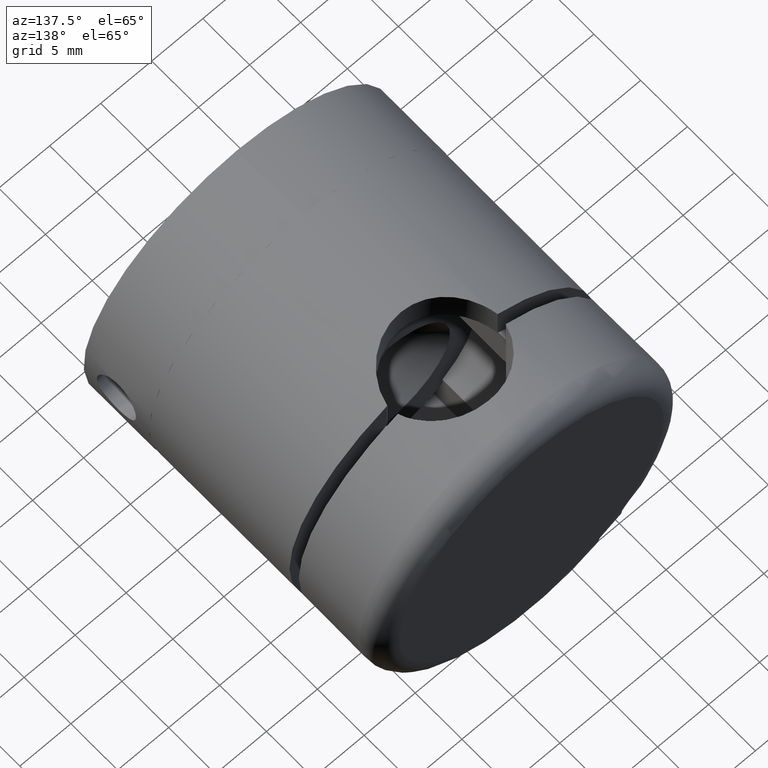
[diagram: clean part render]
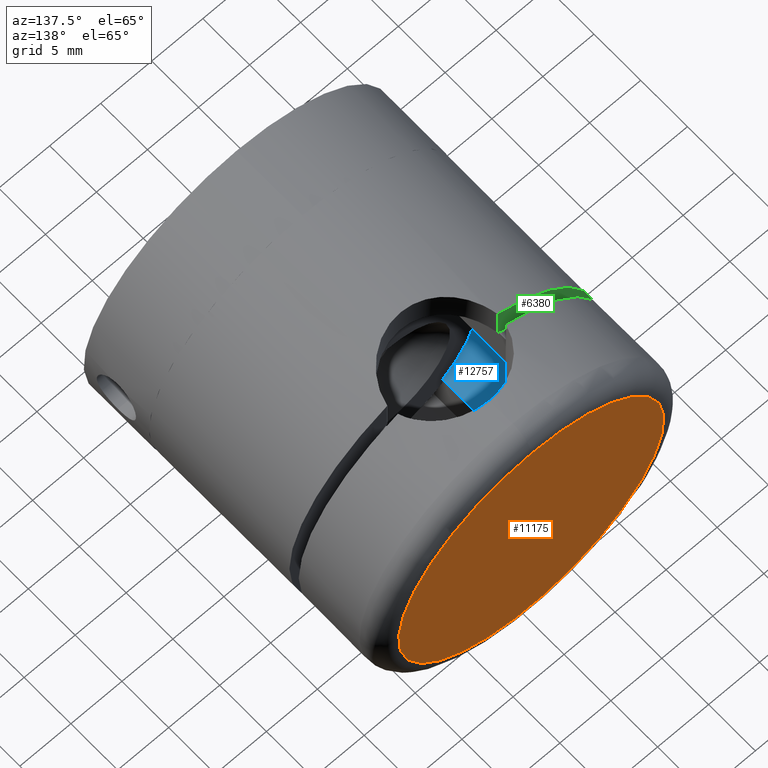
[diagram: same view with three faces highlighted in distinct colors, each labeled with its STEP entity id]
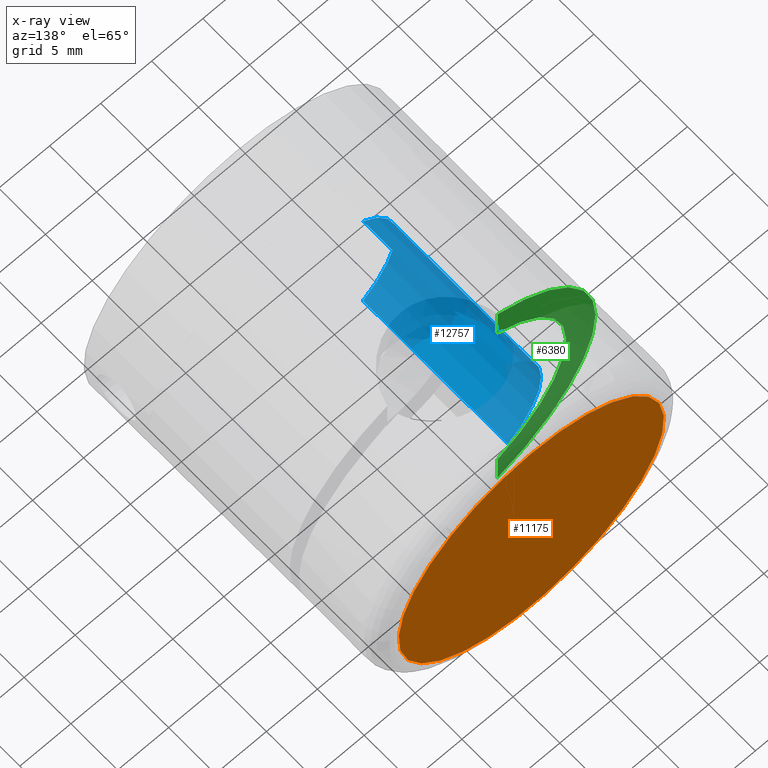
[diagram: x-ray of the same camera — body ghosted, the three highlighted faces saturated]
A machine part, auxiliary view with three faces highlighted in distinct colors.
The next image is the same camera in x-ray (body ghosted, the three faces saturated) — at least one of them is partly hidden behind the body in this view.
Their STEP definitions:

[orange] entity #11175 — the highlighted planar face has unit normal (0, 1, 0).
#384 = CARTESIAN_POINT ( 'NONE',  ( 0.0000000000000000000, 1.500000000000000000, 0.0000000000000000000 ) ) ;
#556 = DIRECTION ( 'NONE',  ( 0.0000000000000000000, -1.000000000000000000, 0.0000000000000000000 ) ) ;
#1029 = DIRECTION ( 'NONE',  ( 0.0000000000000000000, -1.000000000000000000, 0.0000000000000000000 ) ) ;
#1072 = DIRECTION ( 'NONE',  ( 0.0000000000000000000, 0.0000000000000000000, -1.000000000000000000 ) ) ;
#4127 = FACE_OUTER_BOUND ( 'NONE', #16780, .T. ) ;
#4657 = VERTEX_POINT ( 'NONE', #15524 ) ;
#6442 = AXIS2_PLACEMENT_3D ( 'NONE', #16857, #1029, #1072 ) ;
#9128 = CIRCLE ( 'NONE', #6442, 13.00000000000000000 ) ;
#10406 = EDGE_CURVE ( 'NONE', #4657, #4657, #9128, .T. ) ;
#11164 = ORIENTED_EDGE ( 'NONE', *, *, #10406, .T. ) ;
#11175 = ADVANCED_FACE ( 'NONE', ( #4127 ), #14910, .T. ) ;
#12253 = AXIS2_PLACEMENT_3D ( 'NONE', #384, #556, #16290 ) ;
#14910 = PLANE ( 'NONE',  #12253 ) ;
#15524 = CARTESIAN_POINT ( 'NONE',  ( 0.0000000000000000000, 1.500000000000000000, -13.00000000000000000 ) ) ;
#16290 = DIRECTION ( 'NONE',  ( 0.0000000000000000000, -0.0000000000000000000, -1.000000000000000000 ) ) ;
#16780 = EDGE_LOOP ( 'NONE', ( #11164 ) ) ;
#16857 = CARTESIAN_POINT ( 'NONE',  ( 0.0000000000000000000, 1.500000000000000000, 0.0000000000000000000 ) ) ;

[blue] entity #12757 — the highlighted cylindrical surface (partial cylindrical patch) has radius 8.75 mm, axis along (0, -1, 0).
#117 = CIRCLE ( 'NONE', #17166, 8.750000000000001800 ) ;
#309 = ORIENTED_EDGE ( 'NONE', *, *, #9747, .T. ) ;
#533 = DIRECTION ( 'NONE',  ( 0.0000000000000000000, 0.0000000000000000000, 1.000000000000000000 ) ) ;
#1043 = DIRECTION ( 'NONE',  ( 0.0000000000000000000, 0.0000000000000000000, 1.000000000000000000 ) ) ;
#1498 = VECTOR ( 'NONE', #10984, 1000.000000000000000 ) ;
#1726 = VERTEX_POINT ( 'NONE', #9062 ) ;
#2035 = AXIS2_PLACEMENT_3D ( 'NONE', #4083, #8102, #6483 ) ;
#2392 = VERTEX_POINT ( 'NONE', #5010 ) ;
#2623 = ORIENTED_EDGE ( 'NONE', *, *, #14426, .T. ) ;
#2668 = LINE ( 'NONE', #8620, #14488 ) ;
#3356 = DIRECTION ( 'NONE',  ( -0.0000000000000000000, 1.000000000000000000, -0.0000000000000000000 ) ) ;
#4083 = CARTESIAN_POINT ( 'NONE',  ( 0.0000000000000000000, 10.00000000000000200, 0.0000000000000000000 ) ) ;
#5010 = CARTESIAN_POINT ( 'NONE',  ( -5.499999999999999100, 10.00000000000000200, 6.805328794408104900 ) ) ;
#5409 = LINE ( 'NONE', #15855, #1498 ) ;
#5418 = CARTESIAN_POINT ( 'NONE',  ( -5.500000000000000900, 25.50000000000000400, -6.805328794408102200 ) ) ;
#5854 = CARTESIAN_POINT ( 'NONE',  ( 0.0000000000000000000, -14.74873734152917100, 0.0000000000000000000 ) ) ;
#5979 = DIRECTION ( 'NONE',  ( -0.0000000000000000000, 1.000000000000000000, -0.0000000000000000000 ) ) ;
#6483 = DIRECTION ( 'NONE',  ( 0.0000000000000000000, 0.0000000000000000000, 1.000000000000000000 ) ) ;
#7224 = FACE_OUTER_BOUND ( 'NONE', #14522, .T. ) ;
#7270 = VERTEX_POINT ( 'NONE', #9252 ) ;
#8090 = CYLINDRICAL_SURFACE ( 'NONE', #10493, 8.750000000000001800 ) ;
#8102 = DIRECTION ( 'NONE',  ( -0.0000000000000000000, -1.000000000000000000, -0.0000000000000000000 ) ) ;
#8449 = EDGE_CURVE ( 'NONE', #16972, #1726, #5409, .T. ) ;
#8620 = CARTESIAN_POINT ( 'NONE',  ( -5.499999999999999100, -14.74873734152917100, 6.805328794408104000 ) ) ;
#8942 = DIRECTION ( 'NONE',  ( 0.0000000000000000000, 1.000000000000000000, 0.0000000000000000000 ) ) ;
#9062 = CARTESIAN_POINT ( 'NONE',  ( -5.500000000000000900, 10.00000000000000200, -6.805328794408102200 ) ) ;
#9252 = CARTESIAN_POINT ( 'NONE',  ( -5.499999999999999100, 25.50000000000000400, 6.805328794408104000 ) ) ;
#9613 = ORIENTED_EDGE ( 'NONE', *, *, #8449, .F. ) ;
#9747 = EDGE_CURVE ( 'NONE', #2392, #1726, #11192, .T. ) ;
#10493 = AXIS2_PLACEMENT_3D ( 'NONE', #5854, #3356, #533 ) ;
#10863 = ORIENTED_EDGE ( 'NONE', *, *, #11883, .F. ) ;
#10984 = DIRECTION ( 'NONE',  ( 0.0000000000000000000, -1.000000000000000000, 0.0000000000000000000 ) ) ;
#11192 = CIRCLE ( 'NONE', #2035, 8.750000000000001800 ) ;
#11883 = EDGE_CURVE ( 'NONE', #2392, #7270, #2668, .T. ) ;
#12757 = ADVANCED_FACE ( 'NONE', ( #7224 ), #8090, .F. ) ;
#14207 = CARTESIAN_POINT ( 'NONE',  ( 0.0000000000000000000, 25.50000000000000400, 0.0000000000000000000 ) ) ;
#14426 = EDGE_CURVE ( 'NONE', #16972, #7270, #117, .T. ) ;
#14488 = VECTOR ( 'NONE', #5979, 1000.000000000000000 ) ;
#14522 = EDGE_LOOP ( 'NONE', ( #309, #9613, #2623, #10863 ) ) ;
#15855 = CARTESIAN_POINT ( 'NONE',  ( -5.500000000000000900, -14.74873734152917100, -6.805328794408102200 ) ) ;
#16972 = VERTEX_POINT ( 'NONE', #5418 ) ;
#17166 = AXIS2_PLACEMENT_3D ( 'NONE', #14207, #8942, #1043 ) ;

[green] entity #6380 — the highlighted planar face has unit normal (0, -1, 0).
#446 = CARTESIAN_POINT ( 'NONE',  ( 5.408326913195983500, 0.0000000000000000000, -10.82404730218784600 ) ) ;
#505 = VERTEX_POINT ( 'NONE', #11855 ) ;
#576 = DIRECTION ( 'NONE',  ( 0.0000000000000000000, 0.0000000000000000000, -1.000000000000000000 ) ) ;
#1364 = AXIS2_PLACEMENT_3D ( 'NONE', #3856, #11737, #9130 ) ;
#2403 = FACE_OUTER_BOUND ( 'NONE', #5723, .T. ) ;
#3085 = VECTOR ( 'NONE', #4066, 1000.000000000000000 ) ;
#3856 = CARTESIAN_POINT ( 'NONE',  ( 0.0000000000000000000, 0.0000000000000000000, 0.0000000000000000000 ) ) ;
#3905 = DIRECTION ( 'NONE',  ( 0.0000000000000000000, 1.000000000000000000, 0.0000000000000000000 ) ) ;
#4066 = DIRECTION ( 'NONE',  ( 0.0000000000000000000, 0.0000000000000000000, -1.000000000000000000 ) ) ;
#4325 = EDGE_CURVE ( 'NONE', #6208, #505, #13025, .T. ) ;
#5253 = PLANE ( 'NONE',  #5428 ) ;
#5428 = AXIS2_PLACEMENT_3D ( 'NONE', #9122, #3905, #11950 ) ;
#5715 = CARTESIAN_POINT ( 'NONE',  ( 5.408326913195983500, 0.0000000000000000000, -15.00000000000000000 ) ) ;
#5723 = EDGE_LOOP ( 'NONE', ( #16364, #8646, #12326, #13138 ) ) ;
#6208 = VERTEX_POINT ( 'NONE', #10174 ) ;
#6380 = ADVANCED_FACE ( 'NONE', ( #2403 ), #5253, .F. ) ;
#6721 = CARTESIAN_POINT ( 'NONE',  ( 0.0000000000000000000, 0.0000000000000000000, 0.0000000000000000000 ) ) ;
#6960 = VERTEX_POINT ( 'NONE', #17201 ) ;
#8024 = CARTESIAN_POINT ( 'NONE',  ( 5.408326913195983500, 0.0000000000000000000, -15.00000000000000000 ) ) ;
#8646 = ORIENTED_EDGE ( 'NONE', *, *, #4325, .T. ) ;
#9071 = AXIS2_PLACEMENT_3D ( 'NONE', #6721, #16019, #13413 ) ;
#9122 = CARTESIAN_POINT ( 'NONE',  ( 0.0000000000000000000, 0.0000000000000000000, 0.0000000000000000000 ) ) ;
#9130 = DIRECTION ( 'NONE',  ( 0.0000000000000000000, 0.0000000000000000000, 1.000000000000000000 ) ) ;
#9322 = LINE ( 'NONE', #8024, #3085 ) ;
#10174 = CARTESIAN_POINT ( 'NONE',  ( 5.408326913195983500, 0.0000000000000000000, 13.99106857963322200 ) ) ;
#10670 = VERTEX_POINT ( 'NONE', #446 ) ;
#10804 = EDGE_CURVE ( 'NONE', #505, #10670, #12409, .T. ) ;
#11567 = CIRCLE ( 'NONE', #9071, 15.00000000000000000 ) ;
#11737 = DIRECTION ( 'NONE',  ( 0.0000000000000000000, 1.000000000000000000, 0.0000000000000000000 ) ) ;
#11855 = CARTESIAN_POINT ( 'NONE',  ( 5.408326913195983500, 0.0000000000000000000, 10.82404730218784600 ) ) ;
#11950 = DIRECTION ( 'NONE',  ( 0.0000000000000000000, -0.0000000000000000000, 1.000000000000000000 ) ) ;
#12326 = ORIENTED_EDGE ( 'NONE', *, *, #10804, .T. ) ;
#12409 = CIRCLE ( 'NONE', #1364, 12.10000000000000000 ) ;
#12513 = EDGE_CURVE ( 'NONE', #10670, #6960, #9322, .T. ) ;
#13025 = LINE ( 'NONE', #5715, #14272 ) ;
#13138 = ORIENTED_EDGE ( 'NONE', *, *, #12513, .T. ) ;
#13413 = DIRECTION ( 'NONE',  ( 0.0000000000000000000, 0.0000000000000000000, 1.000000000000000000 ) ) ;
#14272 = VECTOR ( 'NONE', #576, 1000.000000000000000 ) ;
#16019 = DIRECTION ( 'NONE',  ( 0.0000000000000000000, 1.000000000000000000, 0.0000000000000000000 ) ) ;
#16145 = EDGE_CURVE ( 'NONE', #6208, #6960, #11567, .T. ) ;
#16364 = ORIENTED_EDGE ( 'NONE', *, *, #16145, .F. ) ;
#17201 = CARTESIAN_POINT ( 'NONE',  ( 5.408326913195983500, 0.0000000000000000000, -13.99106857963322200 ) ) ;